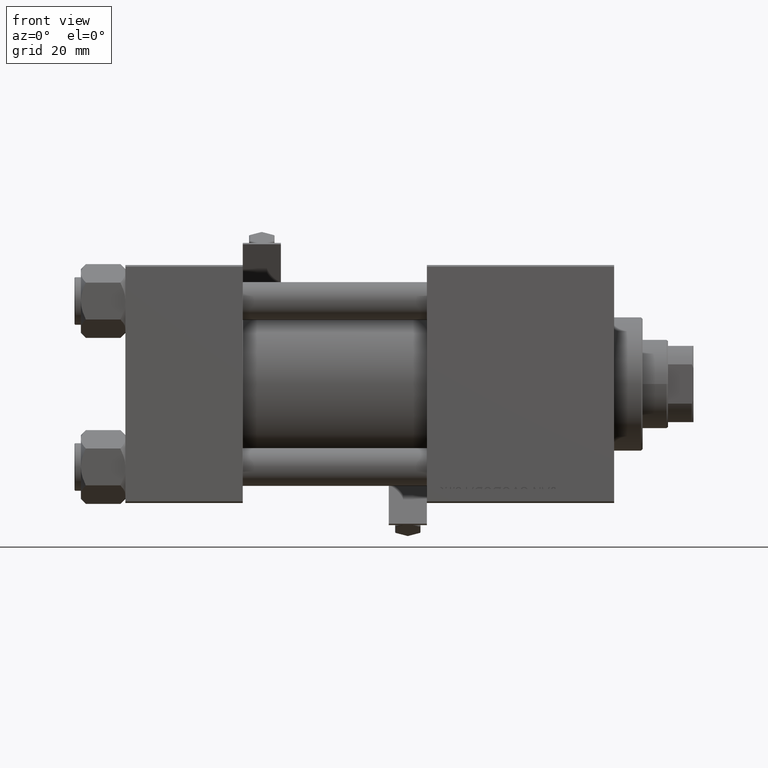
[diagram: clean part render]
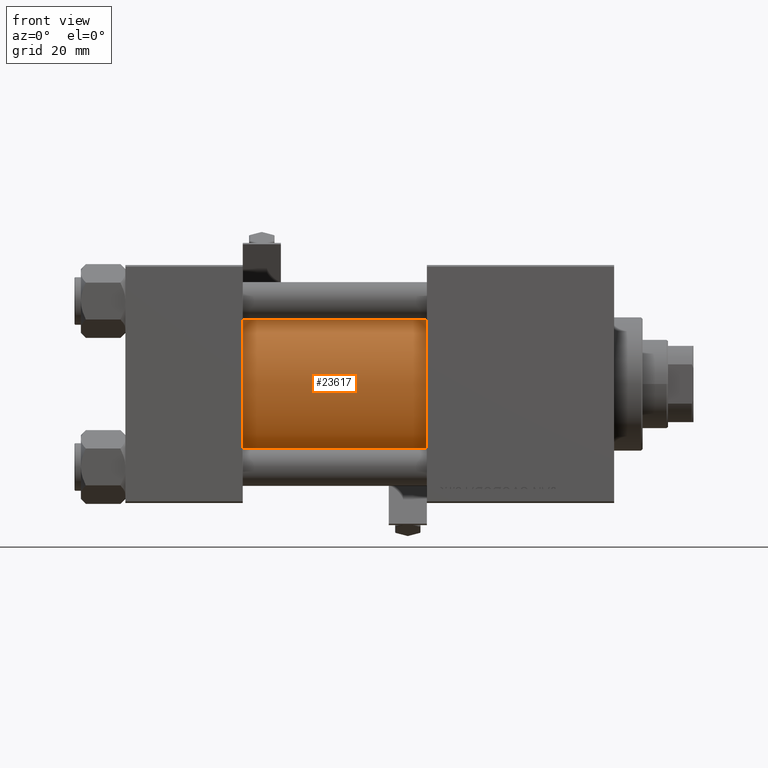
[diagram: same view with one face highlighted and labeled with its STEP entity id]
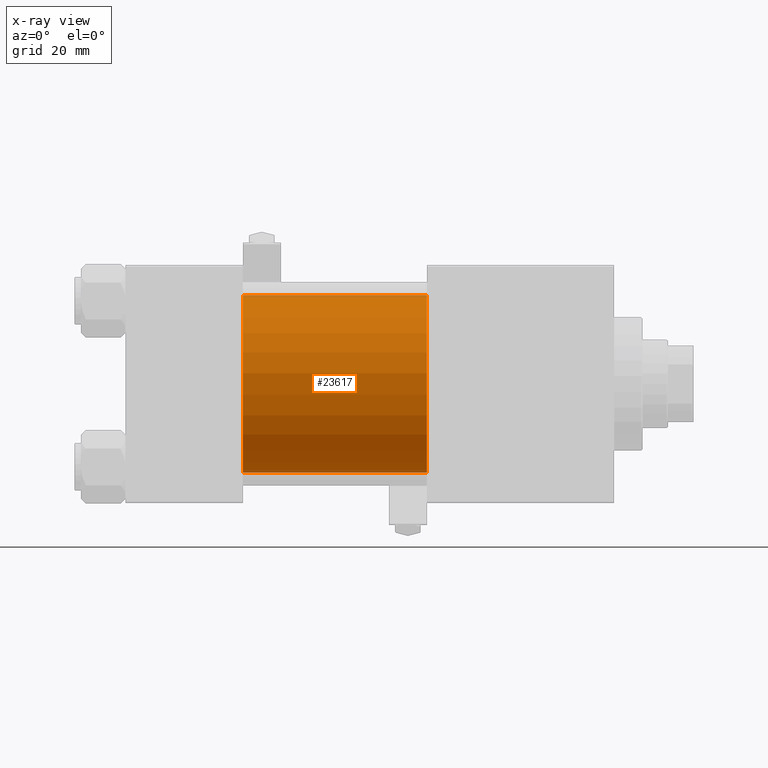
[diagram: x-ray of the same camera — body ghosted, the highlighted face saturated]
A machine part, front view. The second image highlights one B-rep face of the part: STEP entity #23617.
The next image is the same camera in x-ray: the body ghosted, the highlighted face saturated — about 3% of this face is hidden behind the body in this view.
In plain terms, the highlighted cylindrical surface (partial cylindrical patch) has radius 28 mm, axis along (-1, -0, -0).
Its self-contained STEP definition (entity closure, byte-faithful):
#1190 = VERTEX_POINT ( 'NONE', #4358 ) ;
#4358 = CARTESIAN_POINT ( 'NONE',  ( 37.00000000000000000, 8.269258236473776482E-16, -28.00000000000000000 ) ) ;
#4501 = CARTESIAN_POINT ( 'NONE',  ( 37.00000000000000000, -2.602085213965210642E-15, 0.000000000000000000 ) ) ;
#6674 = LINE ( 'NONE', #45557, #48707 ) ;
#8045 = CARTESIAN_POINT ( 'NONE',  ( 95.00000000000000000, -2.602085213965210642E-15, 28.00000000000000000 ) ) ;
#12378 = AXIS2_PLACEMENT_3D ( 'NONE', #4501, #24458, #43869 ) ;
#13697 = DIRECTION ( 'NONE',  ( -1.000000000000000000, -0.000000000000000000, -0.000000000000000000 ) ) ;
#14942 = EDGE_CURVE ( 'NONE', #45663, #31553, #21865, .T. ) ;
#15171 = DIRECTION ( 'NONE',  ( 0.000000000000000000, 0.000000000000000000, -1.000000000000000000 ) ) ;
#17884 = EDGE_CURVE ( 'NONE', #31553, #1190, #25200, .T. ) ;
#21865 = CIRCLE ( 'NONE', #44194, 28.00000000000000000 ) ;
#23213 = DIRECTION ( 'NONE',  ( 1.000000000000000000, 0.000000000000000000, 0.000000000000000000 ) ) ;
#23617 = ADVANCED_FACE ( 'NONE', ( #40669 ), #24881, .T. ) ;
#24458 = DIRECTION ( 'NONE',  ( 1.000000000000000000, -0.000000000000000000, 0.000000000000000000 ) ) ;
#24881 = CYLINDRICAL_SURFACE ( 'NONE', #27925, 28.00000000000000000 ) ;
#25200 = LINE ( 'NONE', #32957, #43449 ) ;
#27925 = AXIS2_PLACEMENT_3D ( 'NONE', #36792, #48708, #39649 ) ;
#28187 = EDGE_CURVE ( 'NONE', #45663, #43921, #6674, .T. ) ;
#29421 = ORIENTED_EDGE ( 'NONE', *, *, #28187, .T. ) ;
#31505 = EDGE_CURVE ( 'NONE', #43921, #1190, #48825, .T. ) ;
#31553 = VERTEX_POINT ( 'NONE', #44388 ) ;
#32957 = CARTESIAN_POINT ( 'NONE',  ( 95.00000000000000000, 8.269258236473776482E-16, -28.00000000000000000 ) ) ;
#33812 = EDGE_LOOP ( 'NONE', ( #48652, #40338, #29421, #39600 ) ) ;
#36351 = CARTESIAN_POINT ( 'NONE',  ( 37.00000000000000000, -2.602085213965210642E-15, 28.00000000000000000 ) ) ;
#36792 = CARTESIAN_POINT ( 'NONE',  ( 95.00000000000000000, -2.602085213965210642E-15, 0.000000000000000000 ) ) ;
#39600 = ORIENTED_EDGE ( 'NONE', *, *, #31505, .T. ) ;
#39649 = DIRECTION ( 'NONE',  ( 0.000000000000000000, 0.000000000000000000, 1.000000000000000000 ) ) ;
#40338 = ORIENTED_EDGE ( 'NONE', *, *, #14942, .F. ) ;
#40464 = CARTESIAN_POINT ( 'NONE',  ( 95.00000000000000000, -2.602085213965210642E-15, 0.000000000000000000 ) ) ;
#40669 = FACE_OUTER_BOUND ( 'NONE', #33812, .T. ) ;
#43449 = VECTOR ( 'NONE', #48512, 1000.000000000000000 ) ;
#43869 = DIRECTION ( 'NONE',  ( 0.000000000000000000, 0.000000000000000000, 1.000000000000000000 ) ) ;
#43921 = VERTEX_POINT ( 'NONE', #36351 ) ;
#44194 = AXIS2_PLACEMENT_3D ( 'NONE', #40464, #23213, #15171 ) ;
#44388 = CARTESIAN_POINT ( 'NONE',  ( 95.00000000000000000, 8.269258236473776482E-16, -28.00000000000000000 ) ) ;
#45557 = CARTESIAN_POINT ( 'NONE',  ( 95.00000000000000000, -2.602085213965210642E-15, 28.00000000000000000 ) ) ;
#45663 = VERTEX_POINT ( 'NONE', #8045 ) ;
#48512 = DIRECTION ( 'NONE',  ( -1.000000000000000000, -0.000000000000000000, -0.000000000000000000 ) ) ;
#48652 = ORIENTED_EDGE ( 'NONE', *, *, #17884, .F. ) ;
#48707 = VECTOR ( 'NONE', #13697, 1000.000000000000000 ) ;
#48708 = DIRECTION ( 'NONE',  ( -1.000000000000000000, -0.000000000000000000, -0.000000000000000000 ) ) ;
#48825 = CIRCLE ( 'NONE', #12378, 28.00000000000000000 ) ;